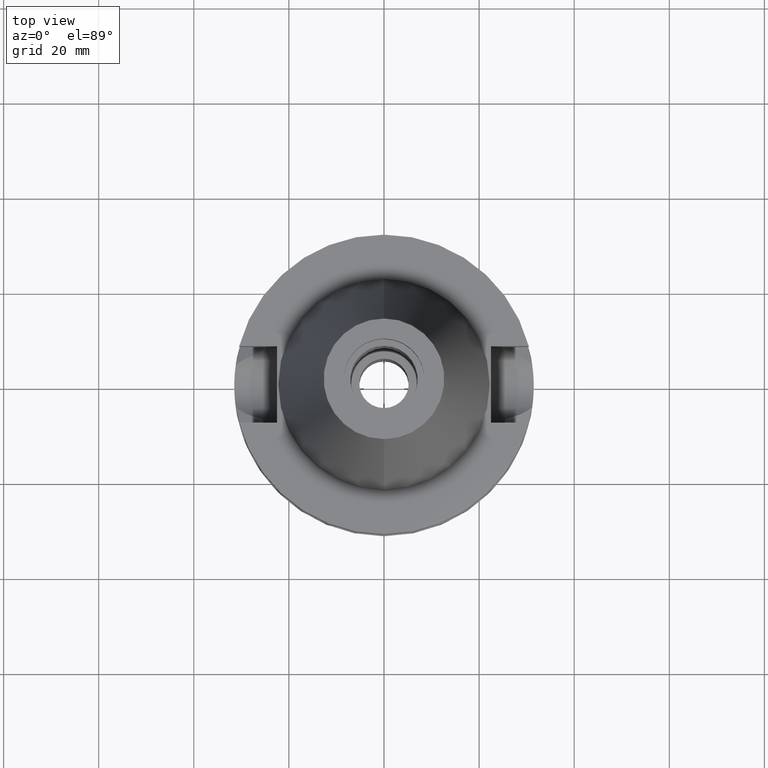
[diagram: clean part render]
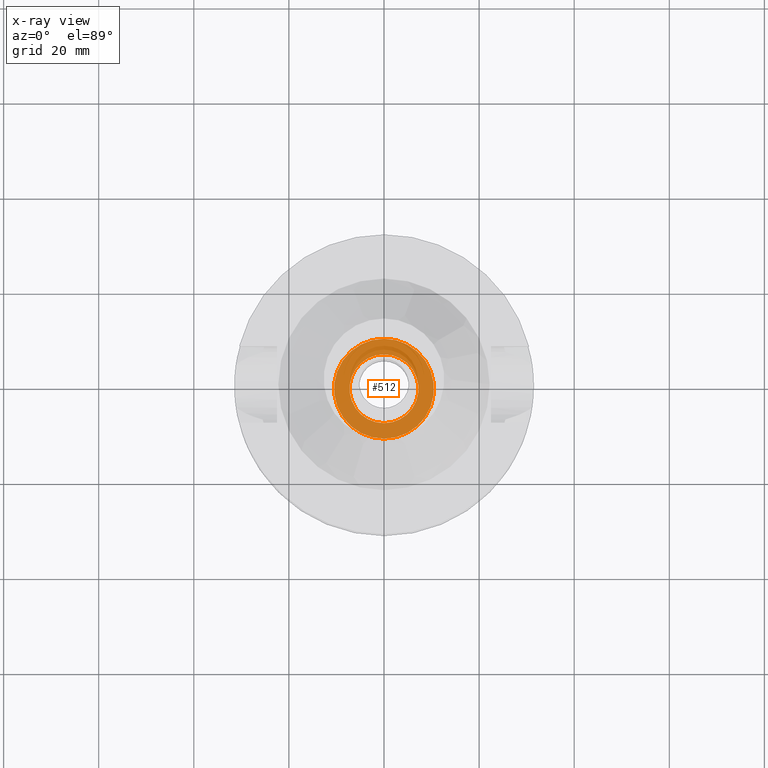
[diagram: x-ray — body ghosted, one internal face saturated and labeled with its STEP entity id]
A machine part, top view, then the same camera in x-ray: the body is ghosted and one INTERNAL B-rep face — a face not visible from any outside direction — is saturated and labeled: STEP entity #512.
In plain terms, the highlighted planar face has unit normal (0, 0, -1).
Its self-contained STEP definition (entity closure, byte-faithful):
#178 = AXIS2_PLACEMENT_3D ( 'NONE', #1495, #408, #3511 ) ;
#215 = VERTEX_POINT ( 'NONE', #1952 ) ;
#229 = EDGE_CURVE ( 'NONE', #669, #215, #3285, .T. ) ;
#240 = DIRECTION ( 'NONE',  ( 0.0000000000000000000, -1.000000000000000000, 0.0000000000000000000 ) ) ;
#408 = DIRECTION ( 'NONE',  ( 0.0000000000000000000, 0.0000000000000000000, 1.000000000000000000 ) ) ;
#512 = ADVANCED_FACE ( 'NONE', ( #1898, #1032 ), #3504, .F. ) ;
#669 = VERTEX_POINT ( 'NONE', #3368 ) ;
#735 = DIRECTION ( 'NONE',  ( 0.0000000000000000000, 0.0000000000000000000, -1.000000000000000000 ) ) ;
#739 = CARTESIAN_POINT ( 'NONE',  ( 0.0000000000000000000, 7.250000000000000000, -8.200000000000001066 ) ) ;
#802 = AXIS2_PLACEMENT_3D ( 'NONE', #852, #2785, #3051 ) ;
#852 = CARTESIAN_POINT ( 'NONE',  ( 0.0000000000000000000, 0.0000000000000000000, -8.200000000000001066 ) ) ;
#928 = CIRCLE ( 'NONE', #1326, 7.250000000000000000 ) ;
#1032 = FACE_BOUND ( 'NONE', #1381, .T. ) ;
#1088 = ORIENTED_EDGE ( 'NONE', *, *, #229, .F. ) ;
#1174 = VERTEX_POINT ( 'NONE', #3356 ) ;
#1295 = CARTESIAN_POINT ( 'NONE',  ( 0.0000000000000000000, 0.0000000000000000000, -8.200000000000001066 ) ) ;
#1326 = AXIS2_PLACEMENT_3D ( 'NONE', #2278, #2258, #3407 ) ;
#1381 = EDGE_LOOP ( 'NONE', ( #2645, #1902 ) ) ;
#1487 = EDGE_CURVE ( 'NONE', #1174, #2668, #1716, .T. ) ;
#1495 = CARTESIAN_POINT ( 'NONE',  ( 0.0000000000000000000, 0.0000000000000000000, -8.200000000000001066 ) ) ;
#1559 = ORIENTED_EDGE ( 'NONE', *, *, #3385, .F. ) ;
#1595 = CARTESIAN_POINT ( 'NONE',  ( 0.0000000000000000000, 0.0000000000000000000, -8.200000000000001066 ) ) ;
#1716 = CIRCLE ( 'NONE', #178, 7.250000000000000000 ) ;
#1865 = EDGE_LOOP ( 'NONE', ( #1088, #1559 ) ) ;
#1898 = FACE_OUTER_BOUND ( 'NONE', #1865, .T. ) ;
#1902 = ORIENTED_EDGE ( 'NONE', *, *, #1487, .F. ) ;
#1952 = CARTESIAN_POINT ( 'NONE',  ( 0.0000000000000000000, -10.50000000000000000, -8.200000000000001066 ) ) ;
#2145 = EDGE_CURVE ( 'NONE', #2668, #1174, #928, .T. ) ;
#2258 = DIRECTION ( 'NONE',  ( 0.0000000000000000000, 0.0000000000000000000, 1.000000000000000000 ) ) ;
#2278 = CARTESIAN_POINT ( 'NONE',  ( 0.0000000000000000000, 0.0000000000000000000, -8.200000000000001066 ) ) ;
#2380 = DIRECTION ( 'NONE',  ( 0.0000000000000000000, -1.000000000000000000, 0.0000000000000000000 ) ) ;
#2525 = AXIS2_PLACEMENT_3D ( 'NONE', #1595, #2715, #240 ) ;
#2645 = ORIENTED_EDGE ( 'NONE', *, *, #2145, .F. ) ;
#2668 = VERTEX_POINT ( 'NONE', #739 ) ;
#2715 = DIRECTION ( 'NONE',  ( 0.0000000000000000000, 0.0000000000000000000, -1.000000000000000000 ) ) ;
#2785 = DIRECTION ( 'NONE',  ( 0.0000000000000000000, 0.0000000000000000000, -1.000000000000000000 ) ) ;
#3047 = AXIS2_PLACEMENT_3D ( 'NONE', #1295, #735, #2380 ) ;
#3051 = DIRECTION ( 'NONE',  ( 0.0000000000000000000, 1.000000000000000000, 0.0000000000000000000 ) ) ;
#3285 = CIRCLE ( 'NONE', #802, 10.50000000000000000 ) ;
#3356 = CARTESIAN_POINT ( 'NONE',  ( 0.0000000000000000000, -7.250000000000000000, -8.200000000000001066 ) ) ;
#3368 = CARTESIAN_POINT ( 'NONE',  ( 0.0000000000000000000, 10.50000000000000000, -8.200000000000001066 ) ) ;
#3385 = EDGE_CURVE ( 'NONE', #215, #669, #3418, .T. ) ;
#3407 = DIRECTION ( 'NONE',  ( 0.0000000000000000000, 1.000000000000000000, 0.0000000000000000000 ) ) ;
#3418 = CIRCLE ( 'NONE', #2525, 10.50000000000000000 ) ;
#3504 = PLANE ( 'NONE',  #3047 ) ;
#3511 = DIRECTION ( 'NONE',  ( 0.0000000000000000000, -1.000000000000000000, 0.0000000000000000000 ) ) ;